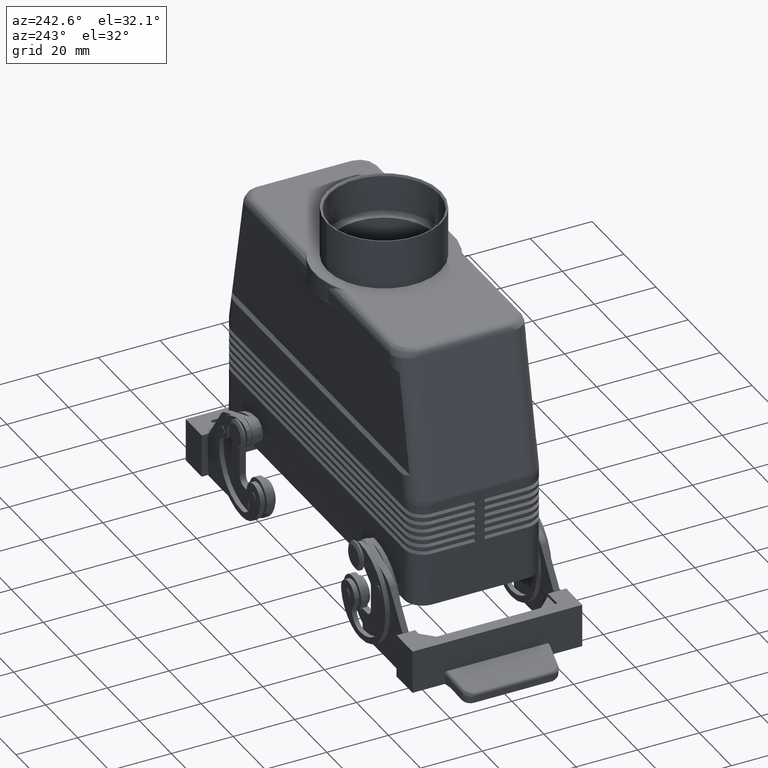
[diagram: clean part render]
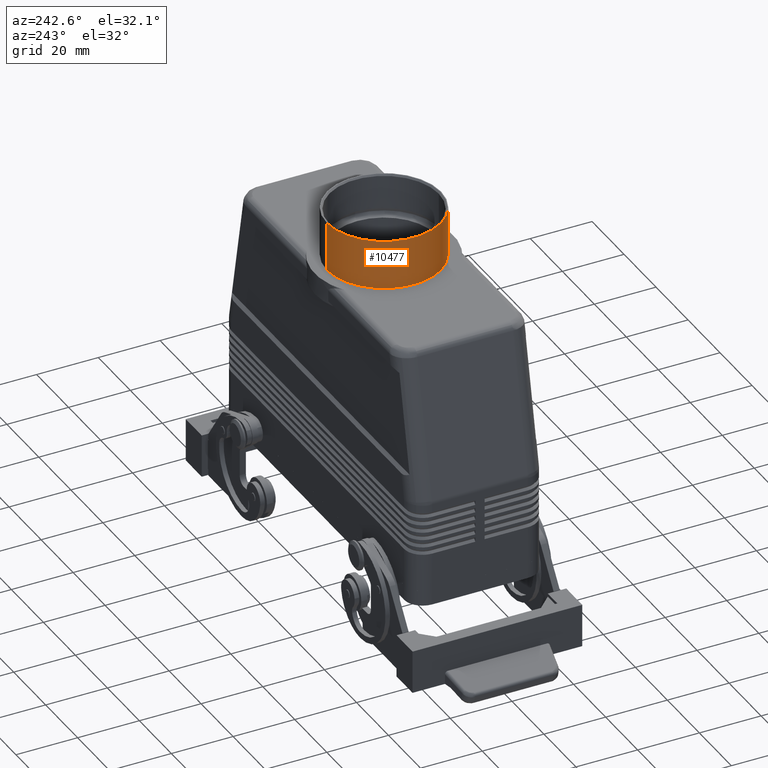
[diagram: same view with one face highlighted and labeled with its STEP entity id]
A machine part, auxiliary view. The second image highlights one B-rep face of the part: STEP entity #10477.
In plain terms, the highlighted cylindrical surface (partial cylindrical patch) has radius 18.5 mm, axis along (0, 0, -1).
Its self-contained STEP definition (entity closure, byte-faithful):
#8891=CARTESIAN_POINT('',(0.0,18.499999999999989,97.0));
#8892=VERTEX_POINT('',#8891);
#8893=CARTESIAN_POINT('',(-2.265522E-015,18.499999999999996,80.999999999999972));
#8894=VERTEX_POINT('',#8893);
#8895=CARTESIAN_POINT('',(0.0,18.499999999999989,97.0));
#8896=DIRECTION('',(0.0,0.0,-1.0));
#8897=VECTOR('',#8896,16.000000000000028);
#8898=LINE('',#8895,#8897);
#8899=EDGE_CURVE('',#8892,#8894,#8898,.T.);
#8901=CARTESIAN_POINT('',(2.265522E-015,-18.500000000000025,97.0));
#8902=VERTEX_POINT('',#8901);
#8910=CARTESIAN_POINT('',(-2.265522E-015,-18.500000000000018,80.999999999999972));
#8911=VERTEX_POINT('',#8910);
#8912=CARTESIAN_POINT('',(-2.265522E-015,-18.500000000000018,80.999999999999972));
#8913=DIRECTION('',(0.0,0.0,1.0));
#8914=VECTOR('',#8913,16.000000000000028);
#8915=LINE('',#8912,#8914);
#8916=EDGE_CURVE('',#8911,#8902,#8915,.T.);
#10454=CARTESIAN_POINT('',(0.0,-1.318531E-014,86.499999999999986));
#10455=DIRECTION('',(0.0,2.835550E-016,-1.0));
#10456=DIRECTION('',(0.0,1.0,0.0));
#10457=AXIS2_PLACEMENT_3D('',#10454,#10455,#10456);
#10458=CYLINDRICAL_SURFACE('',#10457,18.500000000000007);
#10459=ORIENTED_EDGE('',*,*,#8899,.T.);
#10460=CARTESIAN_POINT('',(0.0,-1.162576E-014,80.999999999999972));
#10461=DIRECTION('',(0.0,0.0,-1.0));
#10462=DIRECTION('',(0.0,1.0,0.0));
#10463=AXIS2_PLACEMENT_3D('',#10460,#10461,#10462);
#10464=CIRCLE('',#10463,18.500000000000007);
#10465=EDGE_CURVE('',#8911,#8894,#10464,.T.);
#10466=ORIENTED_EDGE('',*,*,#10465,.F.);
#10467=ORIENTED_EDGE('',*,*,#8916,.T.);
#10468=CARTESIAN_POINT('',(0.0,-1.616264E-014,97.0));
#10469=DIRECTION('',(0.0,0.0,-1.0));
#10470=DIRECTION('',(0.0,1.0,0.0));
#10471=AXIS2_PLACEMENT_3D('',#10468,#10469,#10470);
#10472=CIRCLE('',#10471,18.500000000000007);
#10473=EDGE_CURVE('',#8902,#8892,#10472,.T.);
#10474=ORIENTED_EDGE('',*,*,#10473,.T.);
#10475=EDGE_LOOP('',(#10459,#10466,#10467,#10474));
#10476=FACE_OUTER_BOUND('',#10475,.T.);
#10477=ADVANCED_FACE('',(#10476),#10458,.T.);